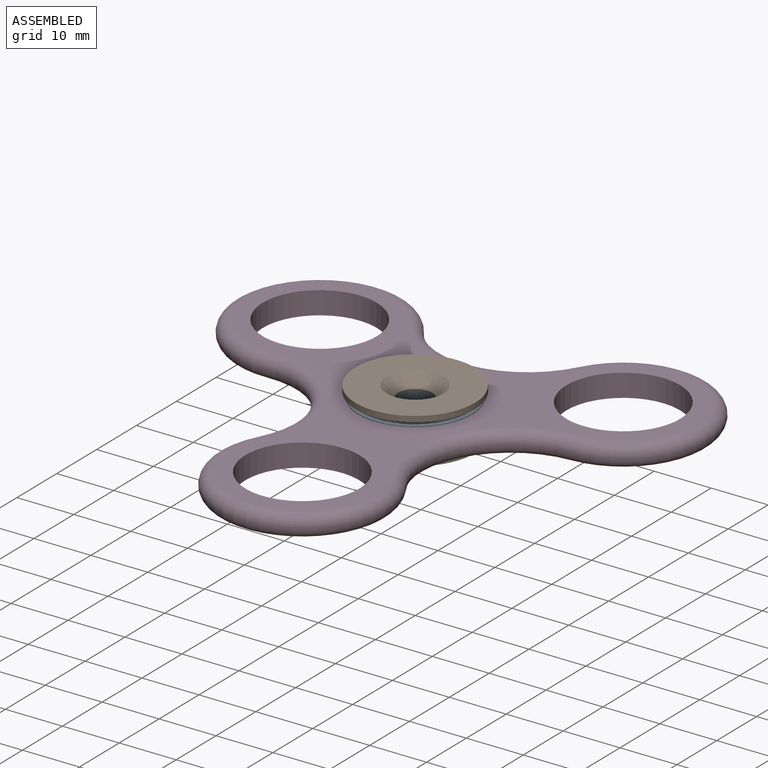
[diagram: assembled view]
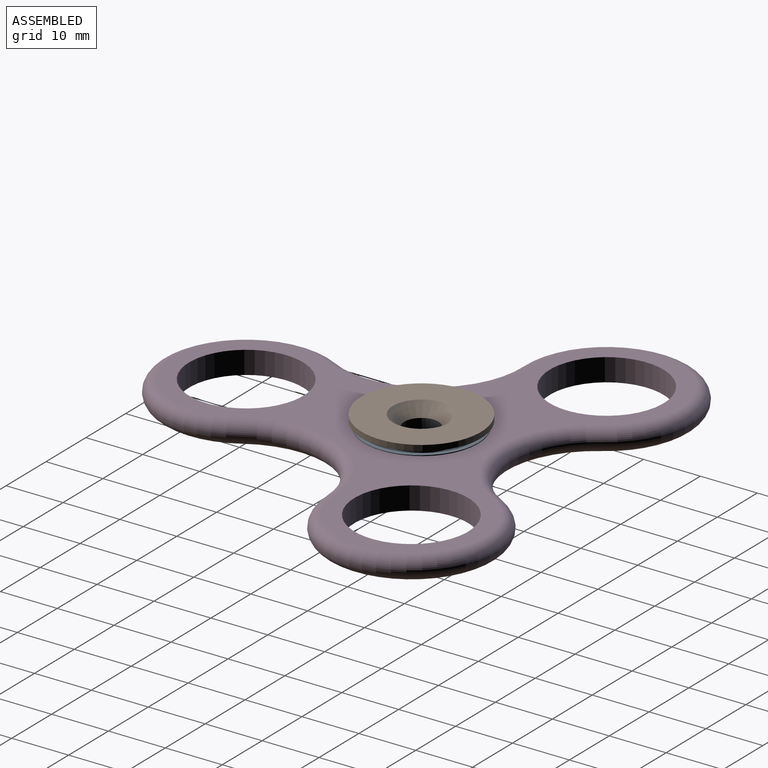
[diagram: assembled view, second angle]
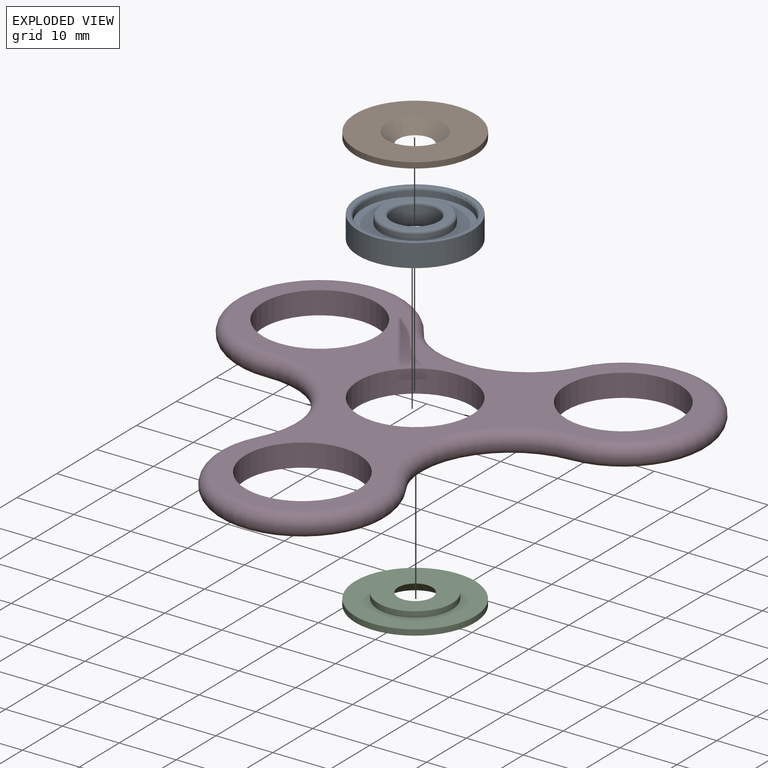
[diagram: exploded view]
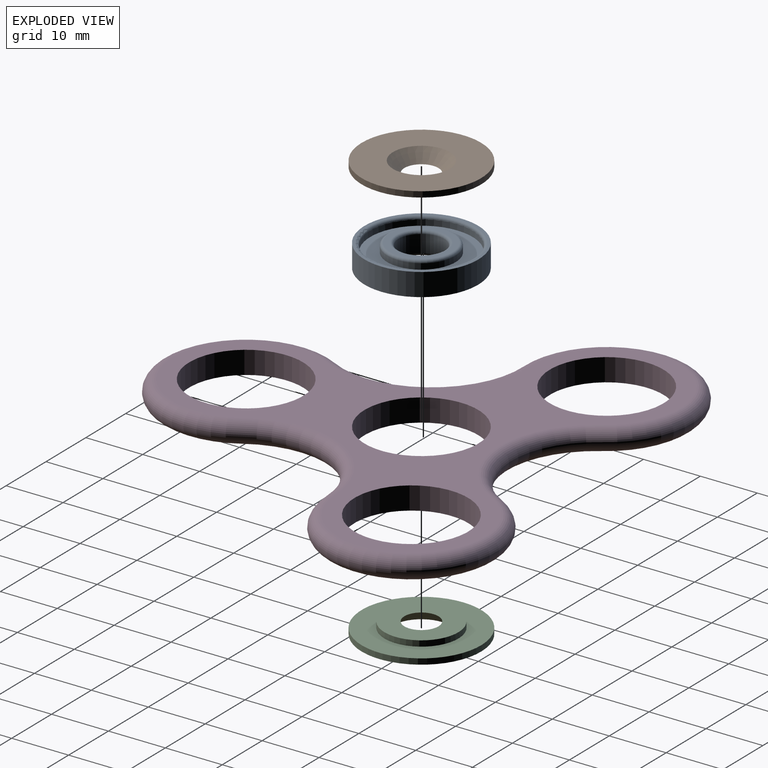
[diagram: exploded view, second angle]
ASSEMBLY  parts=4 mates=3
PART A: 18 faces, bbox 21.3x21.3x4 mm
  f0: plane 11x11mm, normal (0,0,-1), area 31.4mm2, adj f12,f16
  f1: plane 11x11mm, normal (0,0,1), area 31.4mm2, adj f14,f17
  f2: cylinder r=4mm len=8mm, axis (0,0,-1), area 75.4mm2, adj f16,f17
  f3: cylinder r=10mm len=20mm, axis (0,0,-1), area 251.3mm2, adj f4,f5
  f4: plane 20x20mm, normal (0,0,1), area 30.6mm2, adj f3,f15
  f5: plane 20x20mm, normal (0,0,-1), area 30.6mm2, adj f3,f13
  f6: cylinder r=6mm len=12mm, axis (0,0,1), area 37.7mm2, adj f8,f14
  f7: cylinder r=9mm len=18mm, axis (0,0,1), area 56.5mm2, adj f8,f15
  f8: plane 18x18mm, normal (0,0,1), area 141.4mm2, adj f6,f7
  f9: cylinder r=6mm len=12mm, axis (0,0,-1), area 37.7mm2, adj f11,f12
  f10: cylinder r=9mm len=18mm, axis (0,0,-1), area 56.5mm2, adj f11,f13
  f11: plane 18x18mm, normal (0,0,-1), area 141.4mm2, adj f9,f10
  f12: torus R=5.5mm, axis (0,0,1), area 28.7mm2, adj f0,f9
  f13: torus R=9.5mm, axis (0,0,1), area 45.3mm2, adj f5,f10
  f14: torus R=5.5mm, axis (0,0,1), area 28.7mm2, adj f1,f6
  f15: torus R=9.5mm, axis (0,0,1), area 45.3mm2, adj f4,f7
  f16: torus R=4.5mm, axis (0,0,1), area 20.6mm2, adj f0,f2
  f17: torus R=4.5mm, axis (0,0,1), area 20.6mm2, adj f1,f2
PART B: 6 faces, bbox 21x21x2 mm
  f0: cylinder r=6.5mm len=13mm, axis (0,0,-1), area 40.8mm2, adj f1,f4
  f1: plane 13x13mm, normal (0,0,-1), area 104.5mm2, adj f0,f5
  f2: cylinder r=10.5mm len=21mm, axis (0,0,-1), area 66mm2, adj f3,f4
  f3: plane 21x21mm, normal (0,0,1), area 267.8mm2, adj f2,f5
  f4: plane 21x21mm, normal (0,0,-1), area 213.6mm2, adj f0,f2
  f5: cone r=2mm half-angle=45deg, axis (0,0,1), area 71.1mm2, adj f1,f3
PART C: same geometry as B
PART D: 12 faces, bbox 84.4x77.5x4 mm
  f0: cylinder r=10mm len=20mm, axis (0,0,-1), area 251.3mm2, adj f4,f5
  f1: cylinder r=10mm len=20mm, axis (0,0,-1), area 251.3mm2, adj f4,f5
  f2: cylinder r=10mm len=20mm, axis (0,0,-1), area 251.3mm2, adj f4,f5
  f3: cylinder r=10mm len=20mm, axis (0,0,-1), area 251.3mm2, adj f4,f5
  f4: plane 77.96x71mm, normal (0,0,1), area 1235.6mm2, adj f0,f1,f2,f3,f6,f7,f8,f9
  f5: plane 77.96x71mm, normal (0,0,-1), area 1235.6mm2, adj f0,f1,f2,f3,f6,f7,f8,f9
  f6: torus R=17mm, axis (0,0,1), area 207mm2, adj f4,f5,f7,f8
  f7: torus R=13mm, axis (0,0,1), area 375.7mm2, adj f4,f5,f6,f9
  f8: torus R=13mm, axis (0,0,1), area 375.7mm2, adj f4,f5,f6,f10
  f9: torus R=17mm, axis (0,0,1), area 207mm2, adj f4,f5,f7,f11
  f10: torus R=17mm, axis (0,0,1), area 207mm2, adj f4,f5,f8,f11
  f11: torus R=13mm, axis (0,0,1), area 375.7mm2, adj f4,f5,f9,f10
PLACE A t=(0,0,-0.15)mm
PLACE B rot(axis=(0,0,-1),147.8deg) t=(0,0,-0.29)mm
PLACE C rot(axis=(0.96,0.28,0),180deg) t=(0,0,3.71)mm
PLACE D rot(axis=(0,0,-1),57.8deg) t=(0,0,-0.29)mm
MATE fastened D.f1 <-> C.f5  axis (0,0,-1) through (0,0,-0.29)mm
MATE fastened D.f1 <-> B.f5  axis (0,0,1) through (0,0,3.71)mm
MATE revolute A.f2 <-> D.f1  axis (0,0,1) through (0,0,3.71)mm
